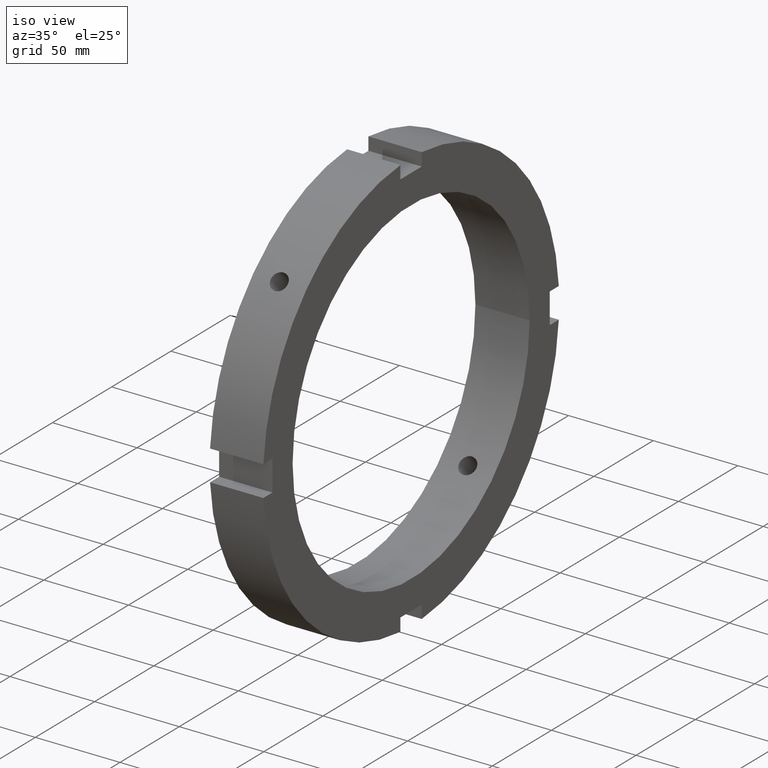
[diagram: clean part render]
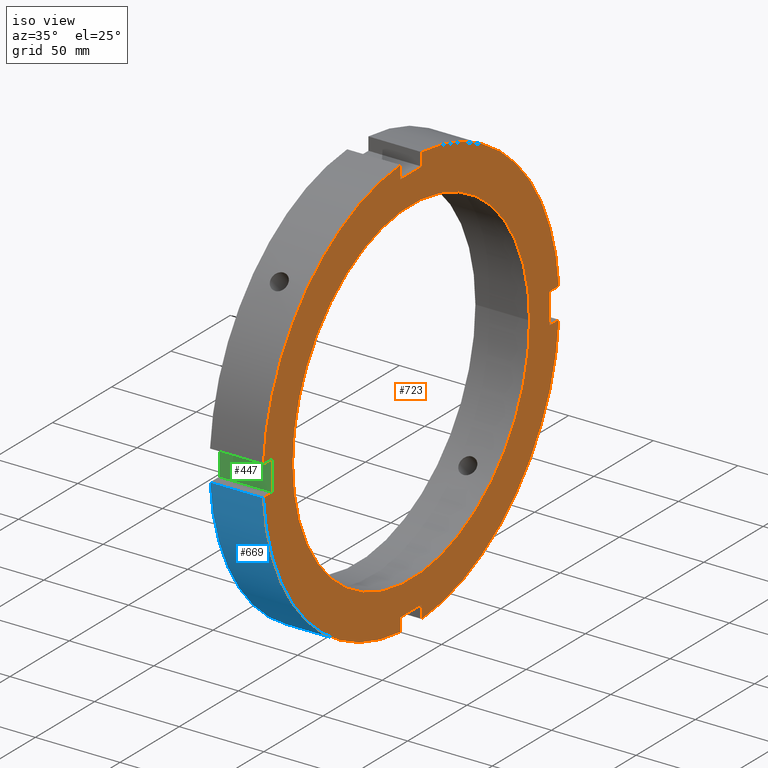
[diagram: same view with three faces highlighted in distinct colors, each labeled with its STEP entity id]
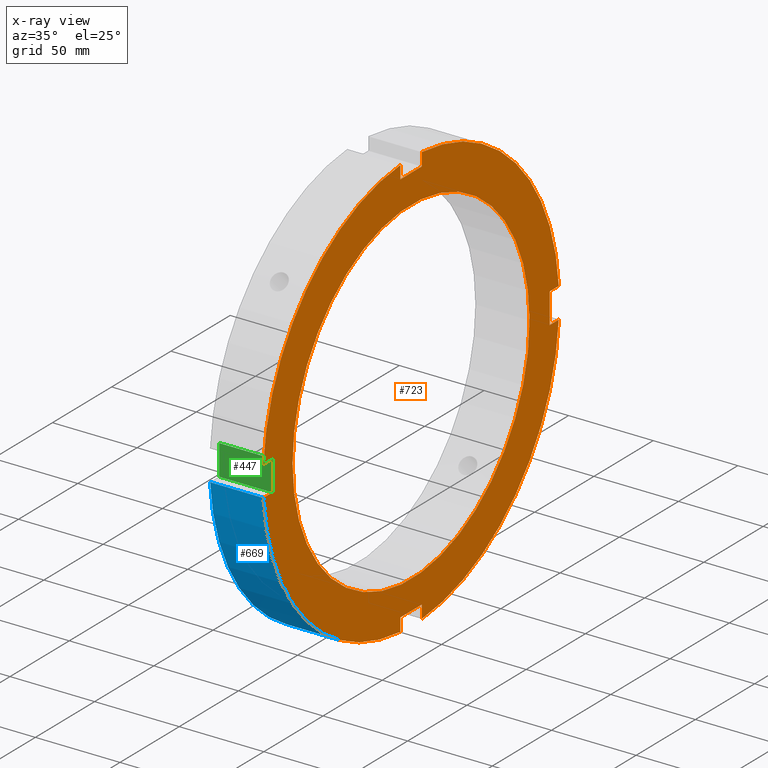
[diagram: x-ray of the same camera — body ghosted, the three highlighted faces saturated]
A machine part, iso view with three faces highlighted in distinct colors.
The next image is the same camera in x-ray (body ghosted, the three faces saturated) — at least one of them is partly hidden behind the body in this view.
Their STEP definitions:

[orange] entity #723 — the highlighted planar face has unit normal (1, 0, 0).
#259=CARTESIAN_POINT('',(31.999999999999975,-9.000000000000014,-117.0));
#260=VERTEX_POINT('',#259);
#267=CARTESIAN_POINT('',(31.999999999999975,-9.000000000000018,-124.675579004069590));
#268=VERTEX_POINT('',#267);
#269=CARTESIAN_POINT('',(31.999999999999975,-9.000000000000025,-124.675579004069590));
#270=DIRECTION('',(0.0,0.0,1.0));
#271=VECTOR('',#270,7.675579004069590);
#272=LINE('',#269,#271);
#273=EDGE_CURVE('',#268,#260,#272,.T.);
#299=CARTESIAN_POINT('',(31.999999999999975,8.999999999999970,-124.675579004069590));
#300=VERTEX_POINT('',#299);
#307=CARTESIAN_POINT('',(31.999999999999975,8.999999999999972,-117.0));
#308=VERTEX_POINT('',#307);
#309=CARTESIAN_POINT('',(31.999999999999975,8.999999999999966,-117.0));
#310=DIRECTION('',(0.0,0.0,-1.0));
#311=VECTOR('',#310,7.675579004069590);
#312=LINE('',#309,#311);
#313=EDGE_CURVE('',#308,#300,#312,.T.);
#336=CARTESIAN_POINT('',(31.999999999999975,-9.000000000000014,-116.999999999999990));
#337=DIRECTION('',(0.0,1.0,0.0));
#338=VECTOR('',#337,17.999999999999979);
#339=LINE('',#336,#338);
#340=EDGE_CURVE('',#260,#308,#339,.T.);
#361=CARTESIAN_POINT('',(31.999999999999975,-117.0,9.000000000000007));
#362=VERTEX_POINT('',#361);
#369=CARTESIAN_POINT('',(31.999999999999975,-124.675579004069590,9.000000000000009));
#370=VERTEX_POINT('',#369);
#371=CARTESIAN_POINT('',(31.999999999999975,-124.675579004069590,9.000000000000007));
#372=DIRECTION('',(0.0,1.0,0.0));
#373=VECTOR('',#372,7.675579004069590);
#374=LINE('',#371,#373);
#375=EDGE_CURVE('',#370,#362,#374,.T.);
#401=CARTESIAN_POINT('',(31.999999999999975,-124.675579004069590,-8.999999999999979));
#402=VERTEX_POINT('',#401);
#409=CARTESIAN_POINT('',(31.999999999999975,-117.0,-8.999999999999981));
#410=VERTEX_POINT('',#409);
#411=CARTESIAN_POINT('',(31.999999999999975,-117.0,-8.999999999999979));
#412=DIRECTION('',(0.0,-1.0,0.0));
#413=VECTOR('',#412,7.675579004069590);
#414=LINE('',#411,#413);
#415=EDGE_CURVE('',#410,#402,#414,.T.);
#438=CARTESIAN_POINT('',(31.999999999999975,-117.0,9.000000000000007));
#439=DIRECTION('',(0.0,0.0,-1.0));
#440=VECTOR('',#439,17.999999999999986);
#441=LINE('',#438,#440);
#442=EDGE_CURVE('',#362,#410,#441,.T.);
#463=CARTESIAN_POINT('',(31.999999999999975,9.0,117.0));
#464=VERTEX_POINT('',#463);
#471=CARTESIAN_POINT('',(31.999999999999975,9.000000000000002,124.675579004069590));
#472=VERTEX_POINT('',#471);
#473=CARTESIAN_POINT('',(31.999999999999975,9.000000000000007,124.675579004069590));
#474=DIRECTION('',(0.0,0.0,-1.0));
#475=VECTOR('',#474,7.675579004069590);
#476=LINE('',#473,#475);
#477=EDGE_CURVE('',#472,#464,#476,.T.);
#503=CARTESIAN_POINT('',(31.999999999999975,-8.999999999999986,124.675579004069590));
#504=VERTEX_POINT('',#503);
#511=CARTESIAN_POINT('',(31.999999999999975,-8.999999999999988,117.0));
#512=VERTEX_POINT('',#511);
#513=CARTESIAN_POINT('',(31.999999999999975,-8.999999999999982,117.0));
#514=DIRECTION('',(0.0,0.0,1.0));
#515=VECTOR('',#514,7.675579004069590);
#516=LINE('',#513,#515);
#517=EDGE_CURVE('',#512,#504,#516,.T.);
#540=CARTESIAN_POINT('',(31.999999999999975,9.000000000000007,117.0));
#541=DIRECTION('',(0.0,-1.0,0.0));
#542=VECTOR('',#541,17.999999999999993);
#543=LINE('',#540,#542);
#544=EDGE_CURVE('',#464,#512,#543,.T.);
#556=CARTESIAN_POINT('',(31.999999999999975,124.675579004069590,8.999999999999993));
#557=VERTEX_POINT('',#556);
#558=CARTESIAN_POINT('',(31.999999999999975,0.0,0.0));
#559=DIRECTION('',(1.0,0.0,0.0));
#560=DIRECTION('',(0.0,1.0,0.0));
#561=AXIS2_PLACEMENT_3D('',#558,#559,#560);
#562=CIRCLE('',#561,125.0);
#563=EDGE_CURVE('',#557,#472,#562,.T.);
#589=CARTESIAN_POINT('',(31.999999999999975,0.0,0.0));
#590=DIRECTION('',(1.0,0.0,0.0));
#591=DIRECTION('',(0.0,1.0,0.0));
#592=AXIS2_PLACEMENT_3D('',#589,#590,#591);
#593=CIRCLE('',#592,125.0);
#594=EDGE_CURVE('',#504,#370,#593,.T.);
#625=CARTESIAN_POINT('',(31.999999999999975,124.675579004069590,-8.999999999999993));
#626=VERTEX_POINT('',#625);
#633=CARTESIAN_POINT('',(31.999999999999975,0.0,0.0));
#634=DIRECTION('',(1.0,0.0,0.0));
#635=DIRECTION('',(0.0,1.0,0.0));
#636=AXIS2_PLACEMENT_3D('',#633,#634,#635);
#637=CIRCLE('',#636,125.0);
#638=EDGE_CURVE('',#300,#626,#637,.T.);
#652=CARTESIAN_POINT('',(31.999999999999975,0.0,0.0));
#653=DIRECTION('',(1.0,0.0,0.0));
#654=DIRECTION('',(0.0,1.0,0.0));
#655=AXIS2_PLACEMENT_3D('',#652,#653,#654);
#656=CIRCLE('',#655,125.0);
#657=EDGE_CURVE('',#402,#268,#656,.T.);
#670=CARTESIAN_POINT('',(31.999999999999975,112.500000000000000,0.0));
#671=DIRECTION('',(1.0,0.0,0.0));
#672=DIRECTION('',(0.0,0.0,-1.0));
#673=AXIS2_PLACEMENT_3D('',#670,#671,#672);
#674=PLANE('',#673);
#675=ORIENTED_EDGE('',*,*,#273,.T.);
#676=ORIENTED_EDGE('',*,*,#340,.T.);
#677=ORIENTED_EDGE('',*,*,#313,.T.);
#678=ORIENTED_EDGE('',*,*,#638,.T.);
#679=CARTESIAN_POINT('',(31.999999999999975,117.0,-8.999999999999993));
#680=VERTEX_POINT('',#679);
#681=CARTESIAN_POINT('',(31.999999999999975,124.675579004069590,-8.999999999999993));
#682=DIRECTION('',(0.0,-1.0,0.0));
#683=VECTOR('',#682,7.675579004069590);
#684=LINE('',#681,#683);
#685=EDGE_CURVE('',#626,#680,#684,.T.);
#686=ORIENTED_EDGE('',*,*,#685,.T.);
#687=CARTESIAN_POINT('',(31.999999999999975,117.0,8.999999999999993));
#688=VERTEX_POINT('',#687);
#689=CARTESIAN_POINT('',(31.999999999999975,117.0,-8.999999999999993));
#690=DIRECTION('',(0.0,0.0,1.0));
#691=VECTOR('',#690,17.999999999999986);
#692=LINE('',#689,#691);
#693=EDGE_CURVE('',#680,#688,#692,.T.);
#694=ORIENTED_EDGE('',*,*,#693,.T.);
#695=CARTESIAN_POINT('',(31.999999999999975,117.0,8.999999999999993));
#696=DIRECTION('',(0.0,1.0,0.0));
#697=VECTOR('',#696,7.675579004069590);
#698=LINE('',#695,#697);
#699=EDGE_CURVE('',#688,#557,#698,.T.);
#700=ORIENTED_EDGE('',*,*,#699,.T.);
#701=ORIENTED_EDGE('',*,*,#563,.T.);
#702=ORIENTED_EDGE('',*,*,#477,.T.);
#703=ORIENTED_EDGE('',*,*,#544,.T.);
#704=ORIENTED_EDGE('',*,*,#517,.T.);
#705=ORIENTED_EDGE('',*,*,#594,.T.);
#706=ORIENTED_EDGE('',*,*,#375,.T.);
#707=ORIENTED_EDGE('',*,*,#442,.T.);
#708=ORIENTED_EDGE('',*,*,#415,.T.);
#709=ORIENTED_EDGE('',*,*,#657,.T.);
#710=EDGE_LOOP('',(#675,#676,#677,#678,#686,#694,#700,#701,#702,#703,#704,#705,#706,#707,#708,#709));
#711=FACE_OUTER_BOUND('',#710,.T.);
#712=CARTESIAN_POINT('',(31.999999999999979,100.0,0.0));
#713=VERTEX_POINT('',#712);
#714=CARTESIAN_POINT('',(31.999999999999979,0.0,0.0));
#715=DIRECTION('',(1.0,0.0,0.0));
#716=DIRECTION('',(0.0,1.0,0.0));
#717=AXIS2_PLACEMENT_3D('',#714,#715,#716);
#718=CIRCLE('',#717,100.0);
#719=EDGE_CURVE('',#713,#713,#718,.T.);
#720=ORIENTED_EDGE('',*,*,#719,.F.);
#721=EDGE_LOOP('',(#720));
#722=FACE_BOUND('',#721,.T.);
#723=ADVANCED_FACE('',(#711,#722),#674,.T.);

[blue] entity #669 — the highlighted cylindrical surface (partial cylindrical patch) has radius 125 mm, axis along (1, 0, 0).
#251=CARTESIAN_POINT('',(0.499999999999963,-9.000000000000018,-124.675579004069590));
#252=VERTEX_POINT('',#251);
#267=CARTESIAN_POINT('',(31.999999999999975,-9.000000000000018,-124.675579004069590));
#268=VERTEX_POINT('',#267);
#275=CARTESIAN_POINT('',(0.499999999999964,-9.000000000000016,-124.675579004069590));
#276=DIRECTION('',(1.0,0.0,0.0));
#277=VECTOR('',#276,31.500000000000014);
#278=LINE('',#275,#277);
#279=EDGE_CURVE('',#252,#268,#278,.T.);
#391=CARTESIAN_POINT('',(0.499999999999963,-124.675579004069590,-8.999999999999979));
#392=VERTEX_POINT('',#391);
#401=CARTESIAN_POINT('',(31.999999999999975,-124.675579004069590,-8.999999999999979));
#402=VERTEX_POINT('',#401);
#403=CARTESIAN_POINT('',(31.999999999999979,-124.675579004069590,-8.999999999999979));
#404=DIRECTION('',(-1.0,0.0,0.0));
#405=VECTOR('',#404,31.500000000000014);
#406=LINE('',#403,#405);
#407=EDGE_CURVE('',#402,#392,#406,.T.);
#646=CARTESIAN_POINT('',(16.249999999999968,0.0,0.0));
#647=DIRECTION('',(1.0,0.0,0.0));
#648=DIRECTION('',(0.0,1.0,0.0));
#649=AXIS2_PLACEMENT_3D('',#646,#647,#648);
#650=CYLINDRICAL_SURFACE('',#649,125.0);
#651=ORIENTED_EDGE('',*,*,#279,.T.);
#652=CARTESIAN_POINT('',(31.999999999999975,0.0,0.0));
#653=DIRECTION('',(1.0,0.0,0.0));
#654=DIRECTION('',(0.0,1.0,0.0));
#655=AXIS2_PLACEMENT_3D('',#652,#653,#654);
#656=CIRCLE('',#655,125.0);
#657=EDGE_CURVE('',#402,#268,#656,.T.);
#658=ORIENTED_EDGE('',*,*,#657,.F.);
#659=ORIENTED_EDGE('',*,*,#407,.T.);
#660=CARTESIAN_POINT('',(0.499999999999963,0.0,0.0));
#661=DIRECTION('',(1.0,0.0,0.0));
#662=DIRECTION('',(0.0,1.0,0.0));
#663=AXIS2_PLACEMENT_3D('',#660,#661,#662);
#664=CIRCLE('',#663,125.0);
#665=EDGE_CURVE('',#392,#252,#664,.T.);
#666=ORIENTED_EDGE('',*,*,#665,.T.);
#667=EDGE_LOOP('',(#651,#658,#659,#666));
#668=FACE_OUTER_BOUND('',#667,.T.);
#669=ADVANCED_FACE('',(#668),#650,.T.);

[green] entity #447 — the highlighted planar face has unit normal (0, 1, 0).
#351=CARTESIAN_POINT('',(0.499999999999963,-117.0,9.000000000000007));
#352=VERTEX_POINT('',#351);
#361=CARTESIAN_POINT('',(31.999999999999975,-117.0,9.000000000000007));
#362=VERTEX_POINT('',#361);
#363=CARTESIAN_POINT('',(31.999999999999975,-117.0,9.000000000000007));
#364=DIRECTION('',(-1.0,0.0,0.0));
#365=VECTOR('',#364,31.500000000000014);
#366=LINE('',#363,#365);
#367=EDGE_CURVE('',#362,#352,#366,.T.);
#393=CARTESIAN_POINT('',(0.499999999999963,-117.0,-8.999999999999981));
#394=VERTEX_POINT('',#393);
#409=CARTESIAN_POINT('',(31.999999999999975,-117.0,-8.999999999999981));
#410=VERTEX_POINT('',#409);
#417=CARTESIAN_POINT('',(31.999999999999975,-117.0,-8.999999999999981));
#418=DIRECTION('',(-1.0,0.0,0.0));
#419=VECTOR('',#418,31.500000000000014);
#420=LINE('',#417,#419);
#421=EDGE_CURVE('',#410,#394,#420,.T.);
#426=CARTESIAN_POINT('',(31.999999999999975,-117.0,-8.999999999999981));
#427=DIRECTION('',(0.0,1.0,0.0));
#428=DIRECTION('',(0.0,0.0,1.0));
#429=AXIS2_PLACEMENT_3D('',#426,#427,#428);
#430=PLANE('',#429);
#431=CARTESIAN_POINT('',(0.499999999999965,-117.0,-8.999999999999981));
#432=DIRECTION('',(0.0,0.0,1.0));
#433=VECTOR('',#432,17.999999999999986);
#434=LINE('',#431,#433);
#435=EDGE_CURVE('',#394,#352,#434,.T.);
#436=ORIENTED_EDGE('',*,*,#435,.F.);
#437=ORIENTED_EDGE('',*,*,#421,.F.);
#438=CARTESIAN_POINT('',(31.999999999999975,-117.0,9.000000000000007));
#439=DIRECTION('',(0.0,0.0,-1.0));
#440=VECTOR('',#439,17.999999999999986);
#441=LINE('',#438,#440);
#442=EDGE_CURVE('',#362,#410,#441,.T.);
#443=ORIENTED_EDGE('',*,*,#442,.F.);
#444=ORIENTED_EDGE('',*,*,#367,.T.);
#445=EDGE_LOOP('',(#436,#437,#443,#444));
#446=FACE_OUTER_BOUND('',#445,.T.);
#447=ADVANCED_FACE('',(#446),#430,.F.);